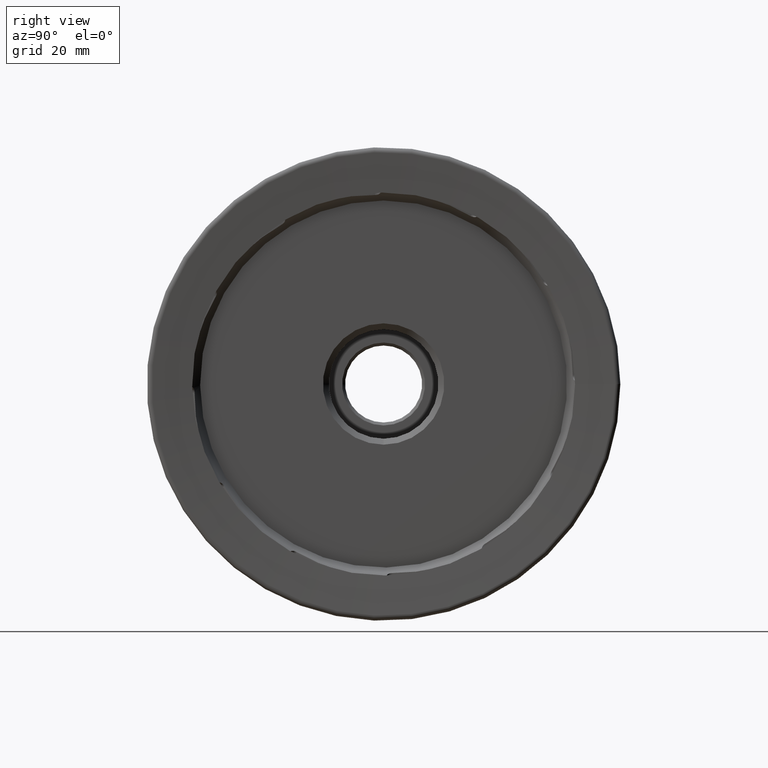
[diagram: clean part render]
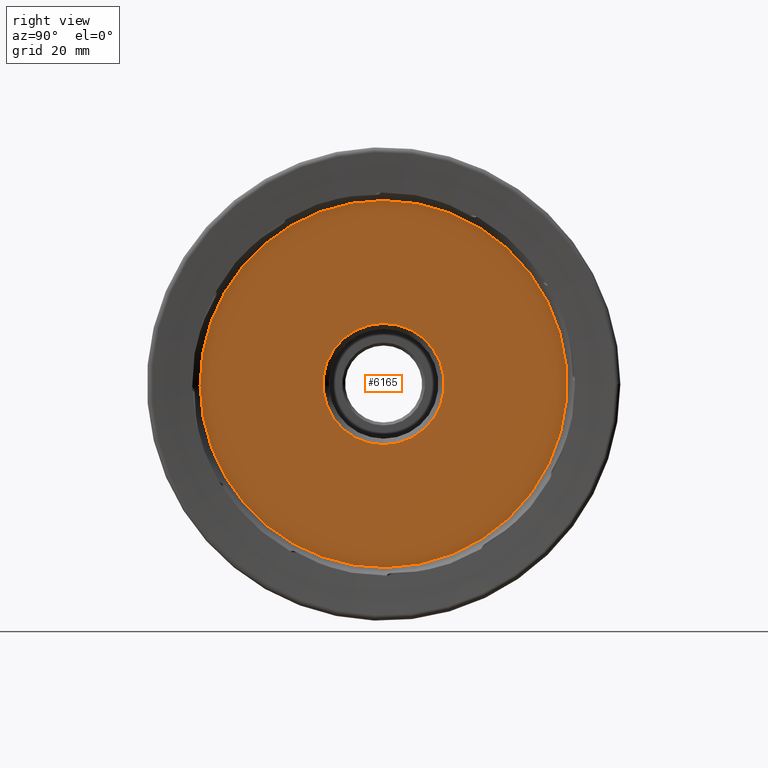
[diagram: same view with one face highlighted and labeled with its STEP entity id]
A machine part, right view. The second image highlights one B-rep face of the part: STEP entity #6165.
In plain terms, the highlighted planar face has unit normal (1, 0, 0).
Its self-contained STEP definition (entity closure, byte-faithful):
#684 = CARTESIAN_POINT ( 'NONE',  ( -2.499999999999999600, 31.00000000000000000, 0.0000000000000000000 ) ) ;
#728 = EDGE_CURVE ( 'NONE', #4327, #4327, #8231, .T. ) ;
#763 = ORIENTED_EDGE ( 'NONE', *, *, #7711, .F. ) ;
#1429 = CARTESIAN_POINT ( 'NONE',  ( -2.500000000000000900, 0.0000000000000000000, 0.0000000000000000000 ) ) ;
#1612 = EDGE_LOOP ( 'NONE', ( #8100 ) ) ;
#2178 = DIRECTION ( 'NONE',  ( 0.0000000000000000000, 0.0000000000000000000, 1.000000000000000000 ) ) ;
#2314 = EDGE_LOOP ( 'NONE', ( #763 ) ) ;
#2828 = DIRECTION ( 'NONE',  ( -1.000000000000000000, -0.0000000000000000000, -0.0000000000000000000 ) ) ;
#4133 = AXIS2_PLACEMENT_3D ( 'NONE', #1429, #6478, #2178 ) ;
#4327 = VERTEX_POINT ( 'NONE', #4819 ) ;
#4329 = DIRECTION ( 'NONE',  ( 0.0000000000000000000, 0.0000000000000000000, -1.000000000000000000 ) ) ;
#4451 = FACE_OUTER_BOUND ( 'NONE', #2314, .T. ) ;
#4819 = CARTESIAN_POINT ( 'NONE',  ( -2.499999999999999600, 0.0000000000000000000, -10.25000000000000900 ) ) ;
#5071 = AXIS2_PLACEMENT_3D ( 'NONE', #684, #8630, #4329 ) ;
#6165 = ADVANCED_FACE ( 'NONE', ( #7825, #4451 ), #7903, .T. ) ;
#6347 = AXIS2_PLACEMENT_3D ( 'NONE', #7103, #2828, #7843 ) ;
#6478 = DIRECTION ( 'NONE',  ( -1.000000000000000000, -0.0000000000000000000, -0.0000000000000000000 ) ) ;
#7103 = CARTESIAN_POINT ( 'NONE',  ( -2.499999999999999600, 0.0000000000000000000, 0.0000000000000000000 ) ) ;
#7711 = EDGE_CURVE ( 'NONE', #7797, #7797, #7723, .T. ) ;
#7723 = CIRCLE ( 'NONE', #4133, 31.00000000000000000 ) ;
#7797 = VERTEX_POINT ( 'NONE', #7810 ) ;
#7810 = CARTESIAN_POINT ( 'NONE',  ( -2.500000000000000900, 0.0000000000000000000, 31.00000000000000000 ) ) ;
#7825 = FACE_BOUND ( 'NONE', #1612, .T. ) ;
#7843 = DIRECTION ( 'NONE',  ( 0.0000000000000000000, 0.0000000000000000000, -1.000000000000000000 ) ) ;
#7903 = PLANE ( 'NONE',  #5071 ) ;
#8100 = ORIENTED_EDGE ( 'NONE', *, *, #728, .T. ) ;
#8231 = CIRCLE ( 'NONE', #6347, 10.25000000000000900 ) ;
#8630 = DIRECTION ( 'NONE',  ( 1.000000000000000000, 0.0000000000000000000, 0.0000000000000000000 ) ) ;